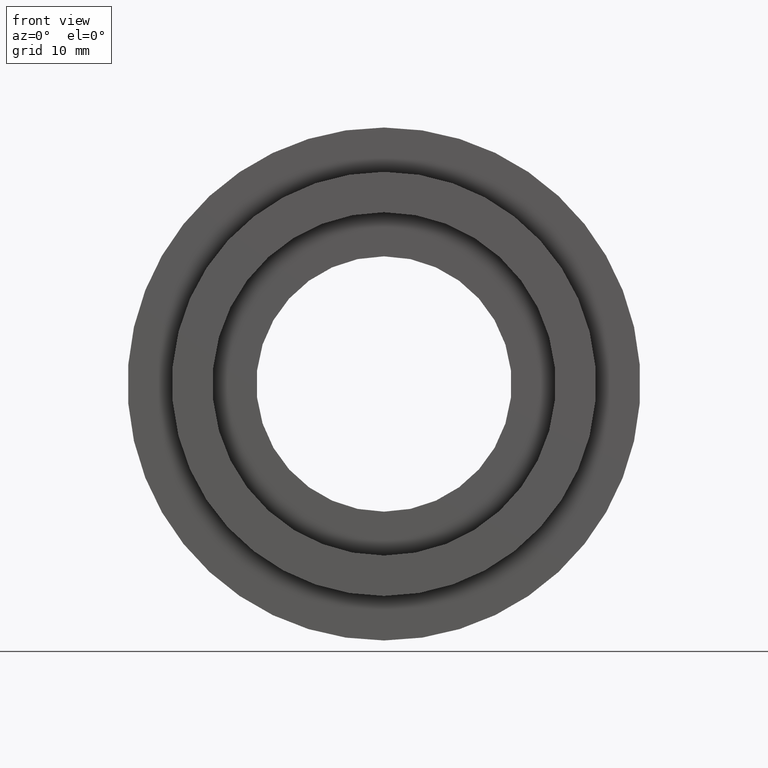
[diagram: clean part render]
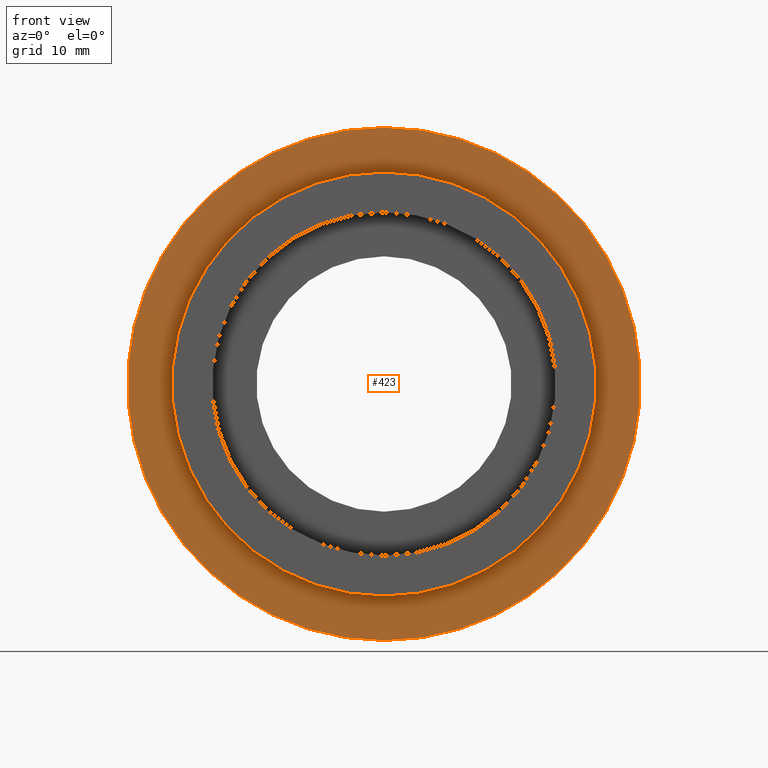
[diagram: same view with one face highlighted and labeled with its STEP entity id]
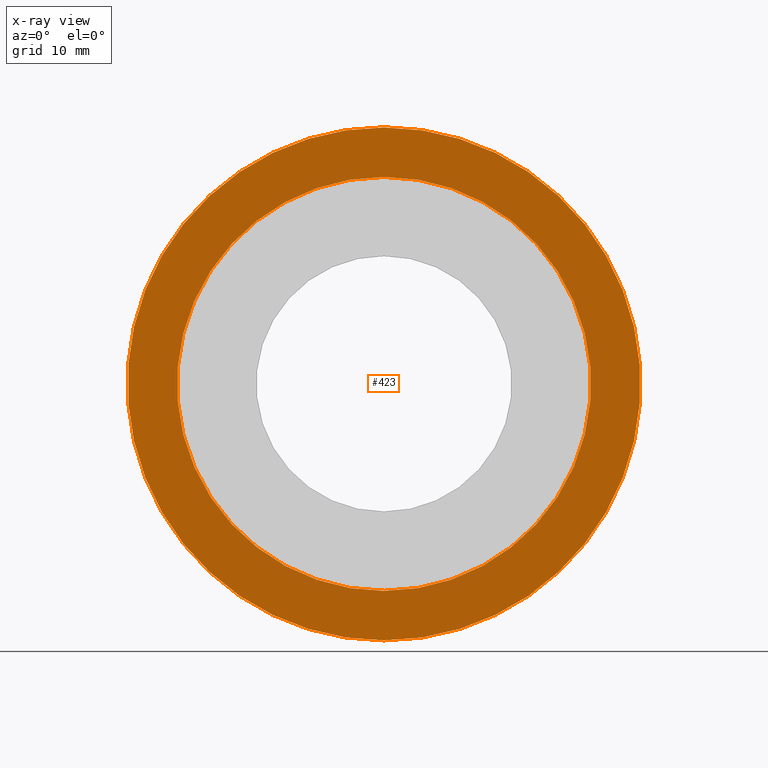
[diagram: x-ray of the same camera — body ghosted, the highlighted face saturated]
A machine part, front view. The second image highlights one B-rep face of the part: STEP entity #423.
The next image is the same camera in x-ray: the body ghosted, the highlighted face saturated — about 0% of this face is hidden behind the body in this view.
In plain terms, the highlighted planar face has unit normal (-0, 1, 0).
Its self-contained STEP definition (entity closure, byte-faithful):
#33 = EDGE_LOOP ( 'NONE', ( #157, #617 ) ) ;
#58 = CARTESIAN_POINT ( 'NONE',  ( 0.0000000000000000000, 4.999999999999999100, 0.0000000000000000000 ) ) ;
#75 = CARTESIAN_POINT ( 'NONE',  ( 0.0000000000000000000, 4.999999999999999100, 20.50000000000000000 ) ) ;
#85 = CARTESIAN_POINT ( 'NONE',  ( 2.510525938252074500E-015, 4.999999999999999100, -20.50000000000000000 ) ) ;
#99 = ORIENTED_EDGE ( 'NONE', *, *, #107, .T. ) ;
#107 = EDGE_CURVE ( 'NONE', #623, #122, #565, .T. ) ;
#112 = DIRECTION ( 'NONE',  ( -0.0000000000000000000, 1.000000000000000000, -0.0000000000000000000 ) ) ;
#115 = AXIS2_PLACEMENT_3D ( 'NONE', #409, #408, #531 ) ;
#118 = CARTESIAN_POINT ( 'NONE',  ( 0.0000000000000000000, 4.999999999999999100, 0.0000000000000000000 ) ) ;
#122 = VERTEX_POINT ( 'NONE', #85 ) ;
#128 = AXIS2_PLACEMENT_3D ( 'NONE', #333, #143, #506 ) ;
#141 = CARTESIAN_POINT ( 'NONE',  ( 0.0000000000000000000, 5.000000000000000900, 0.0000000000000000000 ) ) ;
#143 = DIRECTION ( 'NONE',  ( -0.0000000000000000000, 1.000000000000000000, -0.0000000000000000000 ) ) ;
#157 = ORIENTED_EDGE ( 'NONE', *, *, #533, .F. ) ;
#160 = AXIS2_PLACEMENT_3D ( 'NONE', #118, #112, #173 ) ;
#173 = DIRECTION ( 'NONE',  ( 0.0000000000000000000, 0.0000000000000000000, 1.000000000000000000 ) ) ;
#178 = DIRECTION ( 'NONE',  ( 0.0000000000000000000, 0.0000000000000000000, 1.000000000000000000 ) ) ;
#185 = EDGE_LOOP ( 'NONE', ( #99, #540 ) ) ;
#188 = PLANE ( 'NONE',  #115 ) ;
#211 = CIRCLE ( 'NONE', #590, 20.50000000000000000 ) ;
#275 = VERTEX_POINT ( 'NONE', #465 ) ;
#315 = VERTEX_POINT ( 'NONE', #406 ) ;
#333 = CARTESIAN_POINT ( 'NONE',  ( 0.0000000000000000000, 5.000000000000000900, 0.0000000000000000000 ) ) ;
#355 = CIRCLE ( 'NONE', #591, 25.39999999999999900 ) ;
#406 = CARTESIAN_POINT ( 'NONE',  ( 0.0000000000000000000, 5.000000000000000900, 25.39999999999999900 ) ) ;
#408 = DIRECTION ( 'NONE',  ( -0.0000000000000000000, 1.000000000000000000, 0.0000000000000000000 ) ) ;
#409 = CARTESIAN_POINT ( 'NONE',  ( 25.39999999999999900, 5.000000000000000000, 0.0000000000000000000 ) ) ;
#420 = DIRECTION ( 'NONE',  ( 0.0000000000000000000, 0.0000000000000000000, 1.000000000000000000 ) ) ;
#423 = ADVANCED_FACE ( 'NONE', ( #560, #593 ), #188, .F. ) ;
#431 = EDGE_CURVE ( 'NONE', #122, #623, #211, .T. ) ;
#461 = EDGE_CURVE ( 'NONE', #275, #315, #491, .T. ) ;
#465 = CARTESIAN_POINT ( 'NONE',  ( 3.110602869834276900E-015, 5.000000000000000900, -25.39999999999999900 ) ) ;
#491 = CIRCLE ( 'NONE', #128, 25.39999999999999900 ) ;
#506 = DIRECTION ( 'NONE',  ( 0.0000000000000000000, 0.0000000000000000000, 1.000000000000000000 ) ) ;
#518 = DIRECTION ( 'NONE',  ( -0.0000000000000000000, 1.000000000000000000, -0.0000000000000000000 ) ) ;
#531 = DIRECTION ( 'NONE',  ( 0.0000000000000000000, 0.0000000000000000000, 1.000000000000000000 ) ) ;
#533 = EDGE_CURVE ( 'NONE', #315, #275, #355, .T. ) ;
#540 = ORIENTED_EDGE ( 'NONE', *, *, #431, .T. ) ;
#560 = FACE_OUTER_BOUND ( 'NONE', #33, .T. ) ;
#565 = CIRCLE ( 'NONE', #160, 20.50000000000000000 ) ;
#584 = DIRECTION ( 'NONE',  ( -0.0000000000000000000, 1.000000000000000000, -0.0000000000000000000 ) ) ;
#590 = AXIS2_PLACEMENT_3D ( 'NONE', #58, #584, #420 ) ;
#591 = AXIS2_PLACEMENT_3D ( 'NONE', #141, #518, #178 ) ;
#593 = FACE_BOUND ( 'NONE', #185, .T. ) ;
#617 = ORIENTED_EDGE ( 'NONE', *, *, #461, .F. ) ;
#623 = VERTEX_POINT ( 'NONE', #75 ) ;